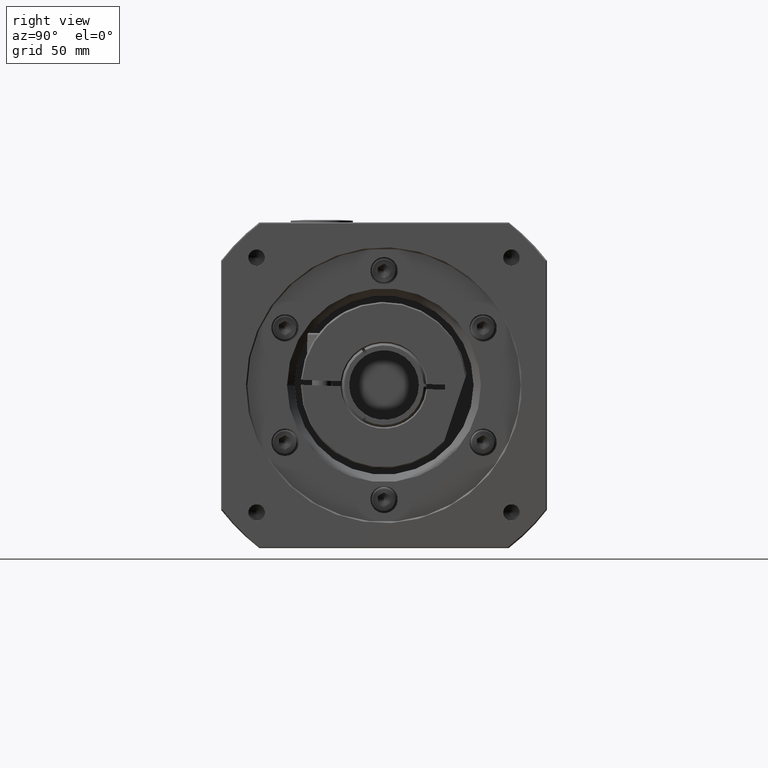
[diagram: clean part render]
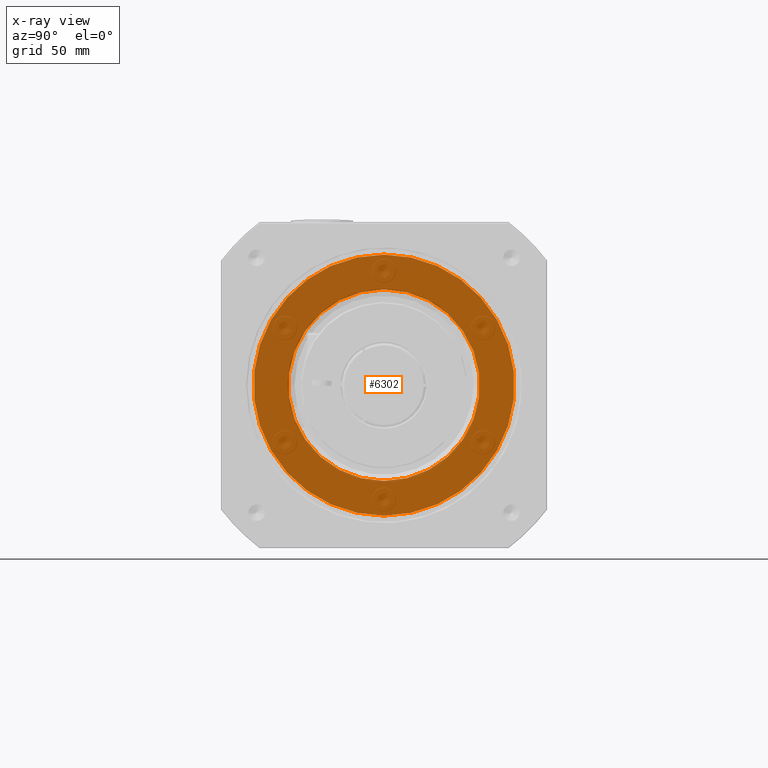
[diagram: x-ray — body ghosted, one internal face saturated and labeled with its STEP entity id]
A machine part, right view, then the same camera in x-ray: the body is ghosted and one INTERNAL B-rep face — a face not visible from any outside direction — is saturated and labeled: STEP entity #6302.
In plain terms, the highlighted planar face has unit normal (-1, -0, -0).
Its self-contained STEP definition (entity closure, byte-faithful):
#983=PLANE('',#6892);
#1197=FACE_BOUND('',#2040,.T.);
#1500=FACE_OUTER_BOUND('',#2039,.T.);
#2039=EDGE_LOOP('',(#4731));
#2040=EDGE_LOOP('',(#4732));
#2523=CIRCLE('',#6893,52.5);
#2524=CIRCLE('',#6894,38.5);
#2982=VERTEX_POINT('',#10383);
#2983=VERTEX_POINT('',#10385);
#3631=EDGE_CURVE('',#2982,#2982,#2523,.T.);
#3632=EDGE_CURVE('',#2983,#2983,#2524,.T.);
#4731=ORIENTED_EDGE('',*,*,#3631,.T.);
#4732=ORIENTED_EDGE('',*,*,#3632,.T.);
#6302=ADVANCED_FACE('',(#1500,#1197),#983,.T.);
#6892=AXIS2_PLACEMENT_3D('',#10382,#8127,#8128);
#6893=AXIS2_PLACEMENT_3D('',#10384,#8129,#8130);
#6894=AXIS2_PLACEMENT_3D('',#10386,#8131,#8132);
#8127=DIRECTION('center_axis',(-1.,-4.85755800782923E-16,-1.72164054506969E-16));
#8128=DIRECTION('ref_axis',(0.,-1.4210854715202E-15,1.));
#8129=DIRECTION('center_axis',(-1.,-6.1062266354384E-16,1.15585299033076E-15));
#8130=DIRECTION('ref_axis',(1.15585299033076E-15,5.34294830600751E-16,1.));
#8131=DIRECTION('center_axis',(1.,4.85755800782923E-16,1.72164054506969E-16));
#8132=DIRECTION('ref_axis',(-1.72164054506969E-16,-1.32271987416886E-15,
1.));
#10382=CARTESIAN_POINT('Origin',(-16.5513956068894,-123.244525766391,-104.9535040948));
#10383=CARTESIAN_POINT('',(-16.5513956068894,-123.244525766391,-157.4535040948));
#10384=CARTESIAN_POINT('Origin',(-16.5513956068893,-123.244525766391,-104.9535040948));
#10385=CARTESIAN_POINT('',(-16.5513956068893,-123.244525766391,-143.4535040948));
#10386=CARTESIAN_POINT('Origin',(-16.5513956068894,-123.244525766391,-104.9535040948));